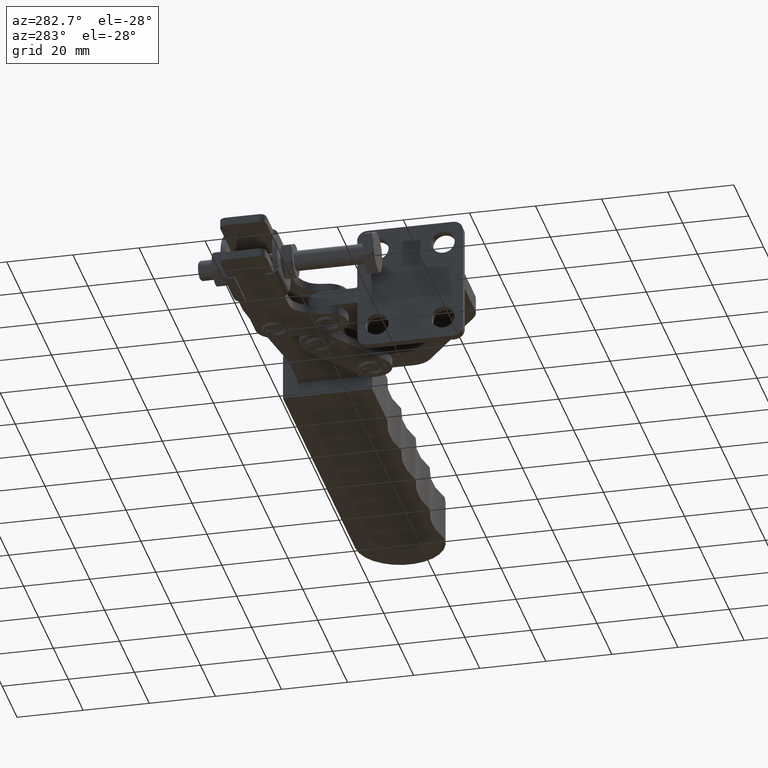
[diagram: clean part render]
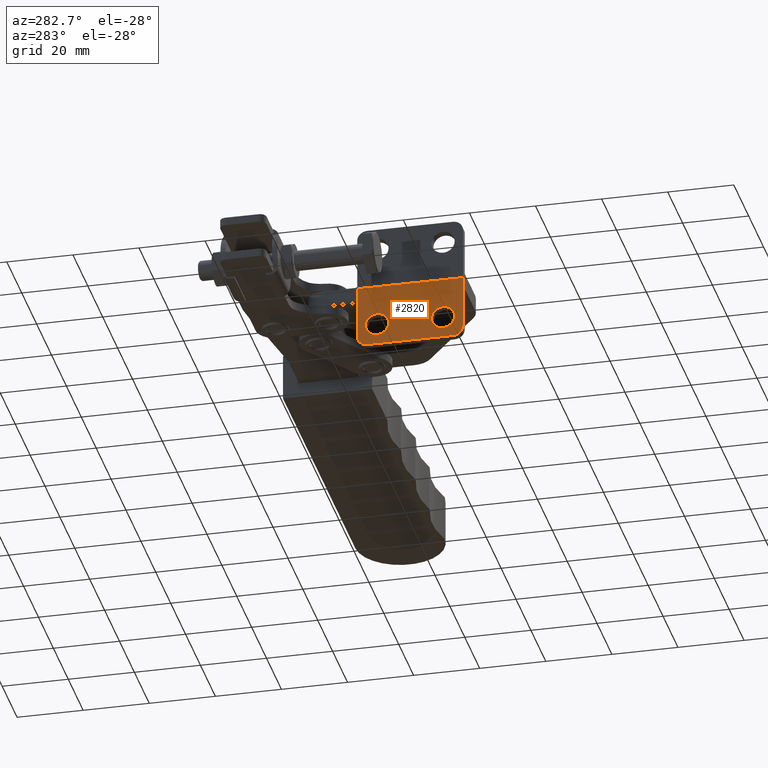
[diagram: same view with one face highlighted and labeled with its STEP entity id]
A machine part, auxiliary view. The second image highlights one B-rep face of the part: STEP entity #2820.
In plain terms, the highlighted planar face has unit normal (1, 0, 0).
Its self-contained STEP definition (entity closure, byte-faithful):
#127 = DIRECTION ( 'NONE',  ( -4.336808689941767300E-016, 1.000000000000000000, 0.0000000000000000000 ) ) ;
#267 = CIRCLE ( 'NONE', #6411, 3.499999999999998700 ) ;
#300 = LINE ( 'NONE', #7886, #9729 ) ;
#409 = CARTESIAN_POINT ( 'NONE',  ( -1.301042606982555200E-015, 3.000000000000058200, -15.99999999999979200 ) ) ;
#447 = CARTESIAN_POINT ( 'NONE',  ( -2.407412430483905500E-029, 5.551115123125782700E-014, -15.99999999999979200 ) ) ;
#598 = LINE ( 'NONE', #1849, #2391 ) ;
#687 = VERTEX_POINT ( 'NONE', #2778 ) ;
#735 = DIRECTION ( 'NONE',  ( 1.000000000000000000, 4.336808689941766800E-016, 0.0000000000000000000 ) ) ;
#742 = DIRECTION ( 'NONE',  ( 1.000000000000000000, 4.336808689941766800E-016, 0.0000000000000000000 ) ) ;
#1022 = CARTESIAN_POINT ( 'NONE',  ( -1.084202172485468500E-015, 2.500000000000061700, -12.49999999999984400 ) ) ;
#1073 = DIRECTION ( 'NONE',  ( -4.336808689941766800E-016, 1.000000000000000000, 0.0000000000000000000 ) ) ;
#1169 = ORIENTED_EDGE ( 'NONE', *, *, #8083, .F. ) ;
#1373 = CIRCLE ( 'NONE', #3365, 3.000000000000002700 ) ;
#1422 = VERTEX_POINT ( 'NONE', #447 ) ;
#1532 = DIRECTION ( 'NONE',  ( 1.000000000000000000, 4.336808689941766800E-016, 0.0000000000000000000 ) ) ;
#1536 = EDGE_CURVE ( 'NONE', #7824, #3669, #7503, .T. ) ;
#1849 = CARTESIAN_POINT ( 'NONE',  ( 0.0000000000000000000, 0.0000000000000000000, -2.500000000000000000 ) ) ;
#1883 = DIRECTION ( 'NONE',  ( -0.0000000000000000000, -0.0000000000000000000, 1.000000000000000000 ) ) ;
#2020 = EDGE_CURVE ( 'NONE', #8482, #9652, #3547, .T. ) ;
#2097 = VERTEX_POINT ( 'NONE', #1022 ) ;
#2102 = VECTOR ( 'NONE', #127, 1000.000000000000000 ) ;
#2195 = CARTESIAN_POINT ( 'NONE',  ( -4.119968255444705400E-015, 9.500000000000060400, -12.49999999999984400 ) ) ;
#2230 = AXIS2_PLACEMENT_3D ( 'NONE', #7553, #7564, #7594 ) ;
#2233 = ORIENTED_EDGE ( 'NONE', *, *, #5207, .T. ) ;
#2391 = VECTOR ( 'NONE', #1883, 1000.000000000000000 ) ;
#2461 = CARTESIAN_POINT ( 'NONE',  ( -9.757819552368984500E-015, 22.50000000000002500, -12.49999999999984400 ) ) ;
#2499 = ORIENTED_EDGE ( 'NONE', *, *, #7718, .F. ) ;
#2778 = CARTESIAN_POINT ( 'NONE',  ( -1.301042606982555200E-015, 3.000000000000058200, -18.99999999999979400 ) ) ;
#2820 = ADVANCED_FACE ( 'NONE', ( #7992, #8735, #9222 ), #6424, .F. ) ;
#2862 = EDGE_CURVE ( 'NONE', #2097, #8445, #8983, .T. ) ;
#2886 = DIRECTION ( 'NONE',  ( 1.000000000000000000, 4.336808689941766800E-016, 0.0000000000000000000 ) ) ;
#3199 = DIRECTION ( 'NONE',  ( 1.000000000000000000, 4.336808689941766800E-016, 0.0000000000000000000 ) ) ;
#3365 = AXIS2_PLACEMENT_3D ( 'NONE', #409, #742, #8506 ) ;
#3389 = CARTESIAN_POINT ( 'NONE',  ( -1.257674520083111000E-014, 28.99999999999997200, -18.99999999999979400 ) ) ;
#3481 = EDGE_CURVE ( 'NONE', #5678, #4888, #300, .T. ) ;
#3547 = CIRCLE ( 'NONE', #8723, 3.499999999999999600 ) ;
#3669 = VERTEX_POINT ( 'NONE', #6854 ) ;
#3972 = CARTESIAN_POINT ( 'NONE',  ( -1.127570259384860400E-014, 26.00000000000002100, -12.49999999999984400 ) ) ;
#4094 = CARTESIAN_POINT ( 'NONE',  ( -2.602085213965087200E-015, 6.000000000000061300, -12.49999999999984400 ) ) ;
#4500 = ORIENTED_EDGE ( 'NONE', *, *, #8599, .T. ) ;
#4668 = DIRECTION ( 'NONE',  ( -4.336808689941767300E-016, 1.000000000000000000, 0.0000000000000000000 ) ) ;
#4831 = CARTESIAN_POINT ( 'NONE',  ( 0.0000000000000000000, 0.0000000000000000000, -2.500000000000000000 ) ) ;
#4873 = CIRCLE ( 'NONE', #2230, 3.499999999999999600 ) ;
#4888 = VERTEX_POINT ( 'NONE', #7100 ) ;
#4982 = EDGE_LOOP ( 'NONE', ( #6626, #2233 ) ) ;
#5074 = VECTOR ( 'NONE', #7674, 1000.000000000000000 ) ;
#5079 = DIRECTION ( 'NONE',  ( 4.336808689941766800E-016, -1.000000000000000000, 0.0000000000000000000 ) ) ;
#5207 = EDGE_CURVE ( 'NONE', #9652, #8482, #4873, .T. ) ;
#5449 = CARTESIAN_POINT ( 'NONE',  ( -1.279358563532822200E-014, 29.50000000000002100, -12.49999999999984400 ) ) ;
#5678 = VERTEX_POINT ( 'NONE', #9288 ) ;
#5952 = AXIS2_PLACEMENT_3D ( 'NONE', #6972, #9599, #8316 ) ;
#6138 = ORIENTED_EDGE ( 'NONE', *, *, #1536, .F. ) ;
#6165 = AXIS2_PLACEMENT_3D ( 'NONE', #4831, #1532, #1073 ) ;
#6171 = LINE ( 'NONE', #8501, #5074 ) ;
#6244 = LINE ( 'NONE', #7819, #2102 ) ;
#6266 = EDGE_LOOP ( 'NONE', ( #6466, #1169, #6138, #9211, #2499, #4500 ) ) ;
#6411 = AXIS2_PLACEMENT_3D ( 'NONE', #7985, #735, #7489 ) ;
#6424 = PLANE ( 'NONE',  #6165 ) ;
#6466 = ORIENTED_EDGE ( 'NONE', *, *, #3481, .F. ) ;
#6495 = ORIENTED_EDGE ( 'NONE', *, *, #6638, .T. ) ;
#6626 = ORIENTED_EDGE ( 'NONE', *, *, #2020, .T. ) ;
#6638 = EDGE_CURVE ( 'NONE', #8445, #2097, #267, .T. ) ;
#6677 = AXIS2_PLACEMENT_3D ( 'NONE', #4094, #2886, #4668 ) ;
#6837 = ORIENTED_EDGE ( 'NONE', *, *, #2862, .T. ) ;
#6854 = CARTESIAN_POINT ( 'NONE',  ( -1.387778780781364100E-014, 31.99999999999997200, -15.99999999999979200 ) ) ;
#6972 = CARTESIAN_POINT ( 'NONE',  ( -1.257674520083111000E-014, 28.99999999999997200, -15.99999999999979200 ) ) ;
#7100 = CARTESIAN_POINT ( 'NONE',  ( -0.0000000000000000000, 0.0000000000000000000, 0.0000000000000000000 ) ) ;
#7489 = DIRECTION ( 'NONE',  ( -4.336808689941767300E-016, 1.000000000000000000, 0.0000000000000000000 ) ) ;
#7503 = CIRCLE ( 'NONE', #5952, 3.000000000000002700 ) ;
#7553 = CARTESIAN_POINT ( 'NONE',  ( -1.127570259384860400E-014, 26.00000000000002100, -12.49999999999984400 ) ) ;
#7564 = DIRECTION ( 'NONE',  ( 1.000000000000000000, 4.336808689941766800E-016, 0.0000000000000000000 ) ) ;
#7594 = DIRECTION ( 'NONE',  ( -4.336808689941767800E-016, 1.000000000000000000, 0.0000000000000000000 ) ) ;
#7674 = DIRECTION ( 'NONE',  ( -0.0000000000000000000, -0.0000000000000000000, 1.000000000000000000 ) ) ;
#7718 = EDGE_CURVE ( 'NONE', #1422, #687, #1373, .T. ) ;
#7819 = CARTESIAN_POINT ( 'NONE',  ( -1.257674520083111000E-014, 28.99999999999997200, -18.99999999999979400 ) ) ;
#7824 = VERTEX_POINT ( 'NONE', #3389 ) ;
#7886 = CARTESIAN_POINT ( 'NONE',  ( -0.0000000000000000000, 0.0000000000000000000, 0.0000000000000000000 ) ) ;
#7985 = CARTESIAN_POINT ( 'NONE',  ( -2.602085213965087200E-015, 6.000000000000061300, -12.49999999999984400 ) ) ;
#7992 = FACE_BOUND ( 'NONE', #9189, .T. ) ;
#8083 = EDGE_CURVE ( 'NONE', #3669, #5678, #6171, .T. ) ;
#8316 = DIRECTION ( 'NONE',  ( -4.336808689941767300E-016, 1.000000000000000000, 0.0000000000000000000 ) ) ;
#8445 = VERTEX_POINT ( 'NONE', #2195 ) ;
#8482 = VERTEX_POINT ( 'NONE', #2461 ) ;
#8501 = CARTESIAN_POINT ( 'NONE',  ( -1.387778780781445700E-014, 32.00000000000185500, -2.500000000000000000 ) ) ;
#8506 = DIRECTION ( 'NONE',  ( -4.336808689941767300E-016, 1.000000000000000000, 0.0000000000000000000 ) ) ;
#8599 = EDGE_CURVE ( 'NONE', #1422, #4888, #598, .T. ) ;
#8723 = AXIS2_PLACEMENT_3D ( 'NONE', #3972, #3199, #9654 ) ;
#8735 = FACE_BOUND ( 'NONE', #4982, .T. ) ;
#8983 = CIRCLE ( 'NONE', #6677, 3.499999999999998700 ) ;
#9189 = EDGE_LOOP ( 'NONE', ( #6837, #6495 ) ) ;
#9211 = ORIENTED_EDGE ( 'NONE', *, *, #9680, .F. ) ;
#9222 = FACE_OUTER_BOUND ( 'NONE', #6266, .T. ) ;
#9288 = CARTESIAN_POINT ( 'NONE',  ( -1.387778780781445700E-014, 32.00000000000185500, 0.0000000000000000000 ) ) ;
#9599 = DIRECTION ( 'NONE',  ( 1.000000000000000000, 4.336808689941766800E-016, 0.0000000000000000000 ) ) ;
#9652 = VERTEX_POINT ( 'NONE', #5449 ) ;
#9654 = DIRECTION ( 'NONE',  ( -4.336808689941767800E-016, 1.000000000000000000, 0.0000000000000000000 ) ) ;
#9680 = EDGE_CURVE ( 'NONE', #687, #7824, #6244, .T. ) ;
#9729 = VECTOR ( 'NONE', #5079, 1000.000000000000000 ) ;